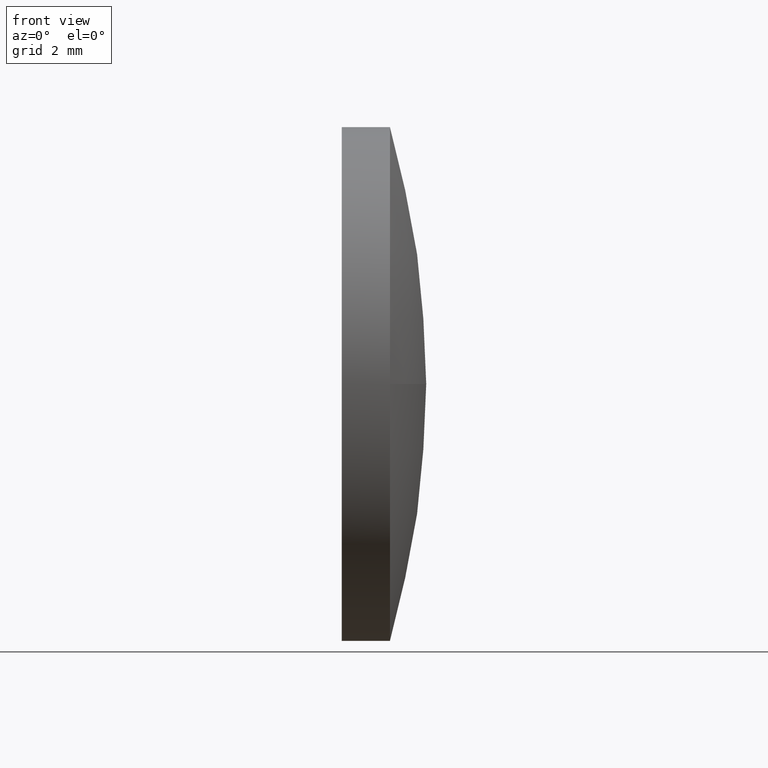
[diagram: clean part render]
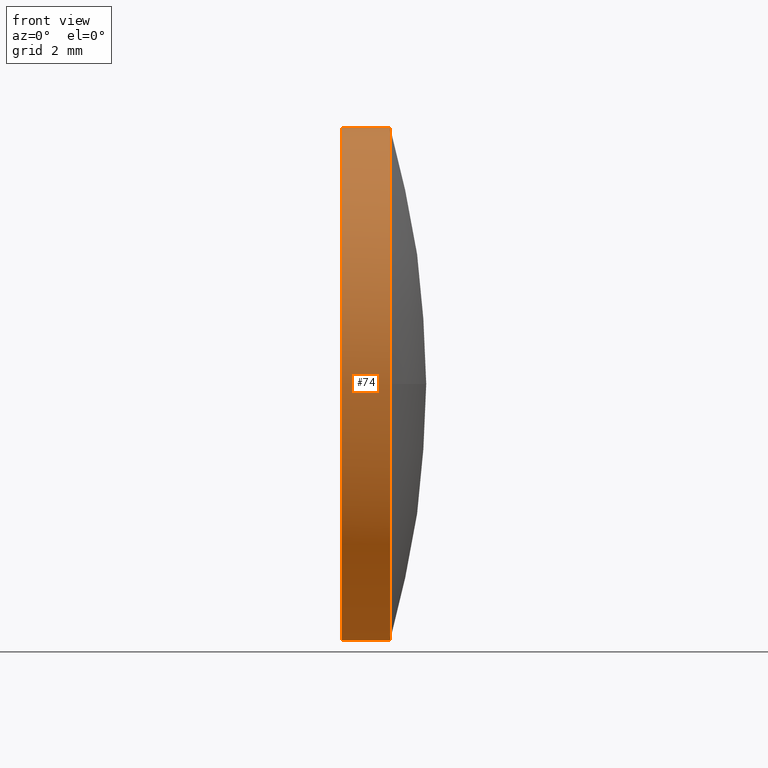
[diagram: same view with one face highlighted and labeled with its STEP entity id]
A machine part, front view. The second image highlights one B-rep face of the part: STEP entity #74.
In plain terms, the highlighted cylindrical surface (partial cylindrical patch) has radius 8 mm, axis along (-1, -0, -0).
Its self-contained STEP definition (entity closure, byte-faithful):
#1 = AXIS2_PLACEMENT_3D ( 'NONE', #50, #64, #15 ) ;
#7 = VERTEX_POINT ( 'NONE', #86 ) ;
#10 = EDGE_LOOP ( 'NONE', ( #16, #84, #155, #117, #18 ) ) ;
#11 = EDGE_CURVE ( 'NONE', #184, #30, #98, .T. ) ;
#14 = CARTESIAN_POINT ( 'NONE',  ( 608.8264614584882100, 205.9704387826813600, -7.999999999999979600 ) ) ;
#15 = DIRECTION ( 'NONE',  ( 0.0000000000000000000, 0.0000000000000000000, 1.000000000000000000 ) ) ;
#16 = ORIENTED_EDGE ( 'NONE', *, *, #11, .F. ) ;
#18 = ORIENTED_EDGE ( 'NONE', *, *, #82, .F. ) ;
#25 = CIRCLE ( 'NONE', #120, 7.999999999999979600 ) ;
#27 = DIRECTION ( 'NONE',  ( 0.0000000000000000000, 0.0000000000000000000, 1.000000000000000000 ) ) ;
#30 = VERTEX_POINT ( 'NONE', #14 ) ;
#36 = CARTESIAN_POINT ( 'NONE',  ( 610.3264614584882100, 205.9704387826813600, -7.999999999999979600 ) ) ;
#37 = FACE_OUTER_BOUND ( 'NONE', #10, .T. ) ;
#47 = CARTESIAN_POINT ( 'NONE',  ( 606.5455140538709900, 205.9704387826813600, 7.999999999999979600 ) ) ;
#48 = CYLINDRICAL_SURFACE ( 'NONE', #118, 7.999999999999979600 ) ;
#50 = CARTESIAN_POINT ( 'NONE',  ( 608.8264614584882100, 205.9704387826813600, 0.0000000000000000000 ) ) ;
#53 = EDGE_CURVE ( 'NONE', #160, #162, #136, .T. ) ;
#56 = EDGE_CURVE ( 'NONE', #184, #7, #25, .T. ) ;
#58 = DIRECTION ( 'NONE',  ( 0.0000000000000000000, 0.0000000000000000000, 1.000000000000000000 ) ) ;
#64 = DIRECTION ( 'NONE',  ( -1.000000000000000000, -0.0000000000000000000, -0.0000000000000000000 ) ) ;
#73 = CARTESIAN_POINT ( 'NONE',  ( 606.5455140538709900, 205.9704387826813600, 0.0000000000000000000 ) ) ;
#74 = ADVANCED_FACE ( 'NONE', ( #37 ), #48, .T. ) ;
#82 = EDGE_CURVE ( 'NONE', #30, #162, #139, .T. ) ;
#83 = DIRECTION ( 'NONE',  ( 0.0000000000000000000, 0.0000000000000000000, 1.000000000000000000 ) ) ;
#84 = ORIENTED_EDGE ( 'NONE', *, *, #56, .T. ) ;
#86 = CARTESIAN_POINT ( 'NONE',  ( 610.3264614584882100, 197.9704387826815300, 0.0000000000000000000 ) ) ;
#92 = VECTOR ( 'NONE', #182, 1000.000000000000000 ) ;
#98 = LINE ( 'NONE', #168, #92 ) ;
#102 = DIRECTION ( 'NONE',  ( -1.000000000000000000, -0.0000000000000000000, -0.0000000000000000000 ) ) ;
#103 = VECTOR ( 'NONE', #135, 1000.000000000000000 ) ;
#109 = AXIS2_PLACEMENT_3D ( 'NONE', #129, #164, #83 ) ;
#117 = ORIENTED_EDGE ( 'NONE', *, *, #53, .T. ) ;
#118 = AXIS2_PLACEMENT_3D ( 'NONE', #73, #180, #58 ) ;
#120 = AXIS2_PLACEMENT_3D ( 'NONE', #170, #102, #27 ) ;
#129 = CARTESIAN_POINT ( 'NONE',  ( 610.3264614584882100, 205.9704387826813600, 0.0000000000000000000 ) ) ;
#135 = DIRECTION ( 'NONE',  ( -1.000000000000000000, -0.0000000000000000000, -0.0000000000000000000 ) ) ;
#136 = LINE ( 'NONE', #47, #103 ) ;
#139 = CIRCLE ( 'NONE', #1, 7.999999999999979600 ) ;
#140 = CARTESIAN_POINT ( 'NONE',  ( 610.3264614584882100, 205.9704387826813600, 7.999999999999979600 ) ) ;
#155 = ORIENTED_EDGE ( 'NONE', *, *, #176, .T. ) ;
#160 = VERTEX_POINT ( 'NONE', #140 ) ;
#162 = VERTEX_POINT ( 'NONE', #178 ) ;
#164 = DIRECTION ( 'NONE',  ( -1.000000000000000000, -0.0000000000000000000, -0.0000000000000000000 ) ) ;
#166 = CIRCLE ( 'NONE', #109, 7.999999999999979600 ) ;
#168 = CARTESIAN_POINT ( 'NONE',  ( 606.5455140538709900, 205.9704387826813600, -7.999999999999979600 ) ) ;
#170 = CARTESIAN_POINT ( 'NONE',  ( 610.3264614584882100, 205.9704387826813600, 0.0000000000000000000 ) ) ;
#176 = EDGE_CURVE ( 'NONE', #7, #160, #166, .T. ) ;
#178 = CARTESIAN_POINT ( 'NONE',  ( 608.8264614584882100, 205.9704387826813600, 7.999999999999979600 ) ) ;
#180 = DIRECTION ( 'NONE',  ( -1.000000000000000000, -0.0000000000000000000, -0.0000000000000000000 ) ) ;
#182 = DIRECTION ( 'NONE',  ( -1.000000000000000000, -0.0000000000000000000, -0.0000000000000000000 ) ) ;
#184 = VERTEX_POINT ( 'NONE', #36 ) ;